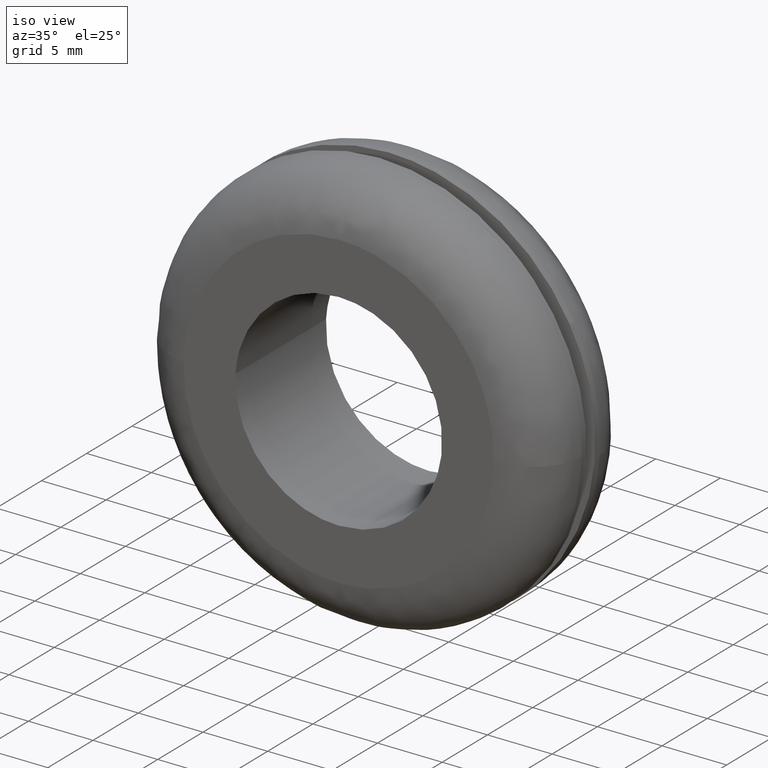
[diagram: clean part render]
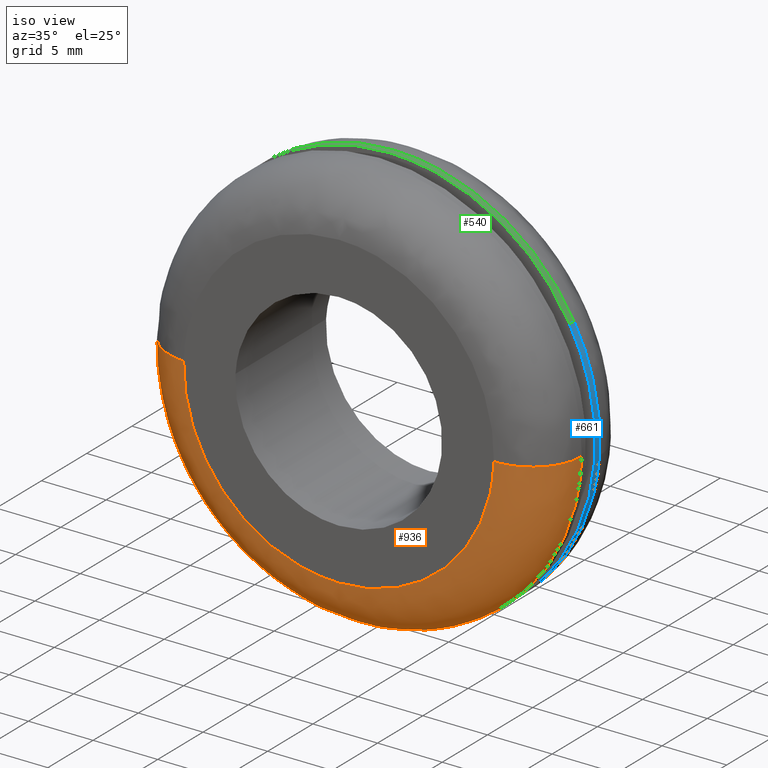
[diagram: same view with three faces highlighted in distinct colors, each labeled with its STEP entity id]
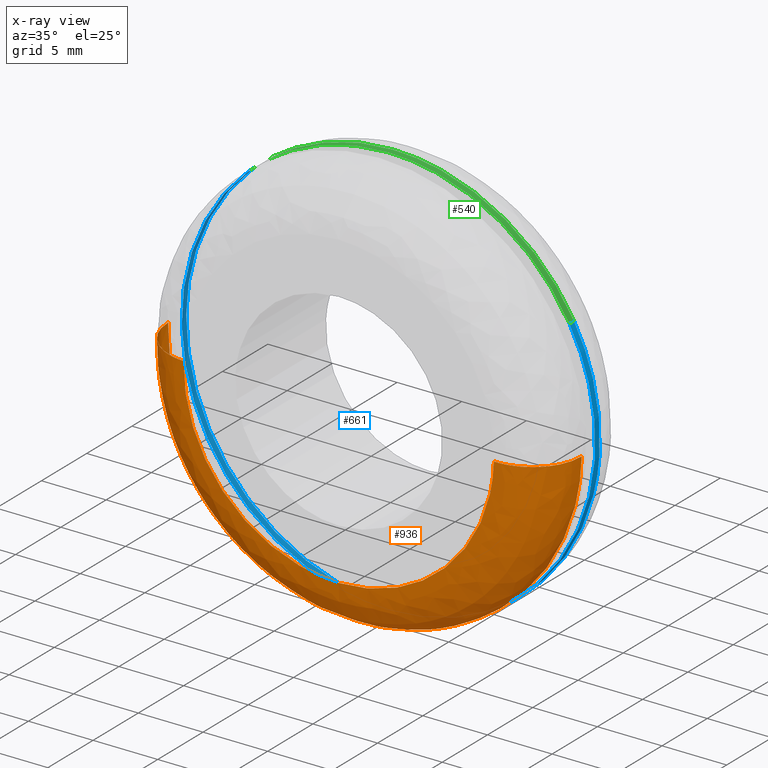
[diagram: x-ray of the same camera — body ghosted, the three highlighted faces saturated]
A machine part, iso view with three faces highlighted in distinct colors.
The next image is the same camera in x-ray (body ghosted, the three faces saturated) — at least one of them is partly hidden behind the body in this view.
Their STEP definitions:

[orange] entity #936 — the highlighted face is a freeform B-spline surface patch.
#137=CARTESIAN_POINT('',(15.994947028532691,3.999999999971177,-0.402081527097603));
#138=VERTEX_POINT('',#137);
#154=CARTESIAN_POINT('',(0.0,4.0,-16.0));
#155=VERTEX_POINT('',#154);
#156=CARTESIAN_POINT('',(0.0,4.0,-16.0));
#157=CARTESIAN_POINT('',(15.602846018882175,4.0,-16.0));
#158=CARTESIAN_POINT('',(15.994947028532689,3.999999999971177,-0.402081527097603));
#166=(BOUNDED_CURVE()B_SPLINE_CURVE(2,(#156,#157,#158),.UNSPECIFIED.,.F.,.U.)B_SPLINE_CURVE_WITH_KNOTS((3,3),(0.0,0.245579891769716),.UNSPECIFIED.)CURVE()GEOMETRIC_REPRESENTATION_ITEM()RATIONAL_B_SPLINE_CURVE((1.0,0.712285260094835,0.989826157681368))REPRESENTATION_ITEM(''));
#167=EDGE_CURVE('',#155,#138,#166,.T.);
#169=CARTESIAN_POINT('',(-10.469433989899141,4.0,-12.099212864114101));
#170=VERTEX_POINT('',#169);
#171=CARTESIAN_POINT('',(-10.469433989899136,4.000000000000000,-12.099212864114101));
#172=CARTESIAN_POINT('',(-5.961410150552005,4.000000000000001,-16.0));
#173=CARTESIAN_POINT('',(0.0,4.0,-16.0));
#181=(BOUNDED_CURVE()B_SPLINE_CURVE(2,(#171,#172,#173),.UNSPECIFIED.,.F.,.U.)B_SPLINE_CURVE_WITH_KNOTS((3,3),(0.885882132988790,1.0),.UNSPECIFIED.)CURVE()GEOMETRIC_REPRESENTATION_ITEM()RATIONAL_B_SPLINE_CURVE((0.854663299542762,0.866302602427844,1.0))REPRESENTATION_ITEM(''));
#182=EDGE_CURVE('',#170,#155,#181,.T.);
#226=CARTESIAN_POINT('',(-15.994947028532691,3.999999999971177,0.402081527097606));
#227=VERTEX_POINT('',#226);
#228=CARTESIAN_POINT('',(-15.994947028532691,3.999999999971177,0.402081527097606));
#229=CARTESIAN_POINT('',(-15.999999999999998,4.000000000000001,0.201072513978281));
#230=CARTESIAN_POINT('',(-16.0,4.0,-3.061516E-016));
#231=CARTESIAN_POINT('',(-15.999999999999998,4.000000000000001,-7.313621324408961));
#232=CARTESIAN_POINT('',(-10.469433989899137,4.000000000000000,-12.099212864114097));
#240=(BOUNDED_CURVE()B_SPLINE_CURVE(2,(#228,#229,#230,#231,#232),.UNSPECIFIED.,.F.,.U.)B_SPLINE_CURVE_WITH_KNOTS((3,2,3),(0.745579891769716,0.750000000000000,0.885882132988790),.UNSPECIFIED.)CURVE()GEOMETRIC_REPRESENTATION_ITEM()RATIONAL_B_SPLINE_CURVE((0.989826157681368,0.994821521091713,1.0,0.840804178758703,0.854663299542762))REPRESENTATION_ITEM(''));
#241=EDGE_CURVE('',#227,#170,#240,.T.);
#848=CARTESIAN_POINT('',(-15.985215332948144,4.278896743776159,0.401836891395958));
#849=CARTESIAN_POINT('',(-16.387052224344121,4.278896743776159,-15.583378441552181));
#850=CARTESIAN_POINT('',(-0.401836891395962,4.278896743776159,-15.985215332948144));
#851=CARTESIAN_POINT('',(15.583378441552181,4.278896743776159,-16.387052224344121));
#852=CARTESIAN_POINT('',(15.985215332948144,4.278896743776159,-0.401836891395963));
#853=CARTESIAN_POINT('',(-16.305805791579093,-0.309342862298938,0.409895905342547));
#854=CARTESIAN_POINT('',(-16.715701696921641,-0.309342862298938,-15.895909886236542));
#855=CARTESIAN_POINT('',(-0.409895905342552,-0.309342862298938,-16.305805791579093));
#856=CARTESIAN_POINT('',(15.895909886236542,-0.309342862298938,-16.715701696921649));
#857=CARTESIAN_POINT('',(16.305805791579093,-0.309342862298938,-0.409895905342553));
#858=CARTESIAN_POINT('',(-11.718895464735361,0.009630605935752,0.294589996197127));
#859=CARTESIAN_POINT('',(-12.013485460932497,0.009630605935752,-11.424305468538236));
#860=CARTESIAN_POINT('',(-0.294589996197130,0.009630605935752,-11.718895464735361));
#861=CARTESIAN_POINT('',(11.424305468538236,0.009630605935752,-12.013485460932497));
#862=CARTESIAN_POINT('',(11.718895464735361,0.009630605935752,-0.294589996197131));
#870=(BOUNDED_SURFACE()B_SPLINE_SURFACE(2,2,((#848,#853,#858),(#849,#854,#859),(#850,#855,#860),(#851,#856,#861),(#852,#857,#862)),.UNSPECIFIED.,.F.,.F.,.U.)B_SPLINE_SURFACE_WITH_KNOTS((3,2,3),(3,3),(0.0,26.493538896952860,52.987077793905719),(0.0,7.289481449129502),.UNSPECIFIED.)GEOMETRIC_REPRESENTATION_ITEM()RATIONAL_B_SPLINE_SURFACE(((0.910892941964346,0.599412927742117,0.915966633662292),(0.644098576197953,0.423848945937333,0.647686218003221),(0.910892941964346,0.599412927742117,0.915966633662292),(0.644098576197953,0.423848945937333,0.647686218003221),(0.910892941964346,0.599412927742117,0.915966633662292)))REPRESENTATION_ITEM('')SURFACE());
#871=ORIENTED_EDGE('',*,*,#241,.T.);
#872=ORIENTED_EDGE('',*,*,#182,.T.);
#873=ORIENTED_EDGE('',*,*,#167,.T.);
#874=CARTESIAN_POINT('',(11.996210271578480,-4.229799E-016,-0.301561145346711));
#875=VERTEX_POINT('',#874);
#876=CARTESIAN_POINT('',(15.994947028532696,3.999999999971176,-0.402081527097603));
#877=CARTESIAN_POINT('',(15.994947028475169,3.589996E-010,-0.402081527091949));
#878=CARTESIAN_POINT('',(11.996210271578482,-4.229799E-016,-0.301561145346710));
#886=(BOUNDED_CURVE()B_SPLINE_CURVE(2,(#876,#877,#878),.UNSPECIFIED.,.F.,.U.)B_SPLINE_CURVE_WITH_KNOTS((3,3),(-1.723441281969931,-0.263586879020717),.UNSPECIFIED.)CURVE()GEOMETRIC_REPRESENTATION_ITEM()RATIONAL_B_SPLINE_CURVE((0.883897567133435,0.626638727256570,0.888510409029225))REPRESENTATION_ITEM(''));
#887=EDGE_CURVE('',#138,#875,#886,.T.);
#888=ORIENTED_EDGE('',*,*,#887,.T.);
#889=CARTESIAN_POINT('',(0.0,-2.220446E-015,-12.0));
#890=VERTEX_POINT('',#889);
#891=CARTESIAN_POINT('',(0.0,-2.220446E-015,-12.0));
#892=CARTESIAN_POINT('',(11.702134514124568,-2.220446E-015,-11.999999999999998));
#893=CARTESIAN_POINT('',(11.996210271578484,-4.229799E-016,-0.301561145346710));
#901=(BOUNDED_CURVE()B_SPLINE_CURVE(2,(#891,#892,#893),.UNSPECIFIED.,.F.,.U.)B_SPLINE_CURVE_WITH_KNOTS((3,3),(0.0,0.245579891769162),.UNSPECIFIED.)CURVE()GEOMETRIC_REPRESENTATION_ITEM()RATIONAL_B_SPLINE_CURVE((1.0,0.712285260095484,0.989826157680116))REPRESENTATION_ITEM(''));
#902=EDGE_CURVE('',#890,#875,#901,.T.);
#903=ORIENTED_EDGE('',*,*,#902,.F.);
#904=CARTESIAN_POINT('',(-11.996210271578480,-3.605033E-016,0.301561145346710));
#905=VERTEX_POINT('',#904);
#906=CARTESIAN_POINT('',(-11.996210271578486,-3.605033E-016,0.301561145346710));
#907=CARTESIAN_POINT('',(-11.999999999999998,-2.220446E-015,0.150804385502714));
#908=CARTESIAN_POINT('',(-12.0,-2.220446E-015,-3.061516E-016));
#909=CARTESIAN_POINT('',(-12.0,-2.220446E-015,-12.0));
#910=CARTESIAN_POINT('',(0.0,-2.220446E-015,-12.0));
#918=(BOUNDED_CURVE()B_SPLINE_CURVE(2,(#906,#907,#908,#909,#910),.UNSPECIFIED.,.F.,.U.)B_SPLINE_CURVE_WITH_KNOTS((3,2,3),(0.745579891769161,0.750000000000000,1.0),.UNSPECIFIED.)CURVE()GEOMETRIC_REPRESENTATION_ITEM()RATIONAL_B_SPLINE_CURVE((0.989826157680116,0.994821521091063,1.0,0.707106781186548,1.0))REPRESENTATION_ITEM(''));
#919=EDGE_CURVE('',#905,#890,#918,.T.);
#920=ORIENTED_EDGE('',*,*,#919,.F.);
#921=CARTESIAN_POINT('',(-15.994947028532696,3.999999999971176,0.402081527097606));
#922=CARTESIAN_POINT('',(-15.994947028475169,3.589996E-010,0.402081527091952));
#923=CARTESIAN_POINT('',(-11.996210271578482,-3.605033E-016,0.301561145346710));
#931=(BOUNDED_CURVE()B_SPLINE_CURVE(2,(#921,#922,#923),.UNSPECIFIED.,.F.,.U.)B_SPLINE_CURVE_WITH_KNOTS((3,3),(-1.723441281969931,-0.263586879020717),.UNSPECIFIED.)CURVE()GEOMETRIC_REPRESENTATION_ITEM()RATIONAL_B_SPLINE_CURVE((0.883897567133435,0.626638727256570,0.888510409029225))REPRESENTATION_ITEM(''));
#932=EDGE_CURVE('',#227,#905,#931,.T.);
#933=ORIENTED_EDGE('',*,*,#932,.F.);
#934=EDGE_LOOP('',(#871,#872,#873,#888,#903,#920,#933));
#935=FACE_OUTER_BOUND('',#934,.T.);
#936=ADVANCED_FACE('',(#935),#870,.T.);

[blue] entity #661 — the highlighted face is a freeform B-spline surface patch.
#464=CARTESIAN_POINT('',(13.999144271823431,6.000000000000282,7.747513127234091));
#465=VERTEX_POINT('',#464);
#481=CARTESIAN_POINT('',(-10.809442670793439,6.000000000009967,11.796437985544690));
#482=VERTEX_POINT('',#481);
#496=CARTESIAN_POINT('',(-10.809442688117811,5.500000000000000,11.796437969671000));
#497=VERTEX_POINT('',#496);
#498=CARTESIAN_POINT('',(-10.809442670793439,6.000000000009967,11.796437985544690));
#499=CARTESIAN_POINT('',(-10.809442688117811,5.500000000000000,11.796437969671000));
#500=QUASI_UNIFORM_CURVE('',1,(#498,#499),.UNSPECIFIED.,.F.,.U.);
#501=EDGE_CURVE('',#482,#497,#500,.T.);
#518=CARTESIAN_POINT('',(13.999144158928511,5.500000000000000,7.747513331226376));
#519=VERTEX_POINT('',#518);
#533=CARTESIAN_POINT('',(13.999144271823431,6.000000000000282,7.747513127234091));
#534=CARTESIAN_POINT('',(13.999144158928511,5.500000000000000,7.747513331226376));
#535=QUASI_UNIFORM_CURVE('',1,(#533,#534),.UNSPECIFIED.,.F.,.U.);
#536=EDGE_CURVE('',#465,#519,#535,.T.);
#541=CARTESIAN_POINT('',(-10.809443321850560,6.012500000038799,11.796437388961980));
#542=CARTESIAN_POINT('',(-22.605880710812539,6.012500000038799,0.986994067111418));
#543=CARTESIAN_POINT('',(-11.796437388961980,6.012500000038799,-10.809443321850560));
#544=CARTESIAN_POINT('',(-0.986994067111418,6.012500000038799,-22.605880710812539));
#545=CARTESIAN_POINT('',(10.809443321850560,6.012500000038799,-11.796437388961980));
#546=CARTESIAN_POINT('',(20.102557312332717,6.012500000038799,-3.280867335785717));
#547=CARTESIAN_POINT('',(13.999142839090082,6.012500000038799,7.747515716070069));
#548=CARTESIAN_POINT('',(-10.809443321850560,5.487187499999029,11.796437388961980));
#549=CARTESIAN_POINT('',(-22.605880710812539,5.487187499999030,0.986994067111418));
#550=CARTESIAN_POINT('',(-11.796437388961980,5.487187499999029,-10.809443321850560));
#551=CARTESIAN_POINT('',(-0.986994067111418,5.487187499999030,-22.605880710812539));
#552=CARTESIAN_POINT('',(10.809443321850560,5.487187499999029,-11.796437388961980));
#553=CARTESIAN_POINT('',(20.102557312332717,5.487187499999030,-3.280867335785717));
#554=CARTESIAN_POINT('',(13.999142839090082,5.487187499999030,7.747515716070069));
#562=(BOUNDED_SURFACE()B_SPLINE_SURFACE(2,1,((#541,#548),(#542,#549),(#543,#550),(#544,#551),(#545,#552),(#546,#553),(#547,#554)),.UNSPECIFIED.,.F.,.F.,.U.)B_SPLINE_SURFACE_WITH_KNOTS((3,2,2,3),(2,2),(0.0,26.509667991878079,53.019335983756150,75.287457096933736),(0.0,1.0),.UNSPECIFIED.)GEOMETRIC_REPRESENTATION_ITEM()RATIONAL_B_SPLINE_SURFACE(((1.0,1.0),(0.707106781186548,0.707106781186548),(1.0,1.0),(0.707106781186548,0.707106781186548),(1.0,1.0),(0.753969696196700,0.753969696196700),(0.921270302782944,0.921270302782944)))REPRESENTATION_ITEM('')SURFACE());
#563=CARTESIAN_POINT('',(15.961050781446730,6.000000000037852,-1.115732025209768));
#564=VERTEX_POINT('',#563);
#565=CARTESIAN_POINT('',(15.961050781446728,6.000000000037852,-1.115732025209769));
#566=CARTESIAN_POINT('',(15.999999999999996,6.0,-0.558545853998097));
#567=CARTESIAN_POINT('',(16.0,6.0,-3.061516E-016));
#568=CARTESIAN_POINT('',(16.000000000000004,5.999999999999999,4.132124867047483));
#569=CARTESIAN_POINT('',(13.999144271823427,6.000000000000281,7.747513127234091));
#577=(BOUNDED_CURVE()B_SPLINE_CURVE(2,(#565,#566,#567,#568,#569),.UNSPECIFIED.,.F.,.U.)B_SPLINE_CURVE_WITH_KNOTS((3,2,3),(0.237833686535076,0.250000000000000,0.332484260513294),.UNSPECIFIED.)CURVE()GEOMETRIC_REPRESENTATION_ITEM()RATIONAL_B_SPLINE_CURVE((0.972879876386944,0.985746277152660,1.0,0.903363677747256,0.870495160132448))REPRESENTATION_ITEM(''));
#578=EDGE_CURVE('',#564,#465,#577,.T.);
#579=ORIENTED_EDGE('',*,*,#578,.T.);
#580=ORIENTED_EDGE('',*,*,#536,.T.);
#581=CARTESIAN_POINT('',(0.0,5.500000000000000,-16.0));
#582=VERTEX_POINT('',#581);
#583=CARTESIAN_POINT('',(0.0,5.500000000000000,-16.0));
#584=CARTESIAN_POINT('',(15.999999999999998,5.500000000000001,-15.999999999999998));
#585=CARTESIAN_POINT('',(16.0,5.500000000000000,-3.061516E-016));
#586=CARTESIAN_POINT('',(16.000000000000007,5.499999999999999,4.132124991396774));
#587=CARTESIAN_POINT('',(13.999144158928505,5.500000000000000,7.747513331226376));
#595=(BOUNDED_CURVE()B_SPLINE_CURVE(2,(#583,#584,#585,#586,#587),.UNSPECIFIED.,.F.,.U.)B_SPLINE_CURVE_WITH_KNOTS((3,2,3),(0.0,0.250000000000000,0.332484262755645),.UNSPECIFIED.)CURVE()GEOMETRIC_REPRESENTATION_ITEM()RATIONAL_B_SPLINE_CURVE((1.0,0.707106781186548,1.0,0.903363675120178,0.870495158345374))REPRESENTATION_ITEM(''));
#596=EDGE_CURVE('',#582,#519,#595,.T.);
#597=ORIENTED_EDGE('',*,*,#596,.F.);
#598=CARTESIAN_POINT('',(-10.809442688117809,5.500000000000000,11.796437969671002));
#599=CARTESIAN_POINT('',(-16.0,5.499999999999999,7.040169520245899));
#600=CARTESIAN_POINT('',(-16.0,5.500000000000000,-3.061516E-016));
#601=CARTESIAN_POINT('',(-15.999999999999998,5.500000000000001,-15.999999999999998));
#602=CARTESIAN_POINT('',(0.0,5.500000000000000,-16.0));
#610=(BOUNDED_CURVE()B_SPLINE_CURVE(2,(#598,#599,#600,#601,#602),.UNSPECIFIED.,.F.,.U.)B_SPLINE_CURVE_WITH_KNOTS((3,2,3),(0.618415192864190,0.750000000000000,1.0),.UNSPECIFIED.)CURVE()GEOMETRIC_REPRESENTATION_ITEM()RATIONAL_B_SPLINE_CURVE((0.853959782840026,0.845838809164181,1.0,0.707106781186548,1.0))REPRESENTATION_ITEM(''));
#611=EDGE_CURVE('',#497,#582,#610,.T.);
#612=ORIENTED_EDGE('',*,*,#611,.F.);
#613=ORIENTED_EDGE('',*,*,#501,.F.);
#614=CARTESIAN_POINT('',(-15.998736707260949,6.000000000037799,0.201056638142445));
#615=VERTEX_POINT('',#614);
#616=CARTESIAN_POINT('',(-10.809442670793437,6.000000000009967,11.796437985544687));
#617=CARTESIAN_POINT('',(-15.911773376574466,6.000000000021244,7.121014335795461));
#618=CARTESIAN_POINT('',(-15.998736707260944,6.000000000037799,0.201056638142445));
#626=(BOUNDED_CURVE()B_SPLINE_CURVE(2,(#616,#617,#618),.UNSPECIFIED.,.F.,.U.)B_SPLINE_CURVE_WITH_KNOTS((3,3),(0.618415192420786,0.747784295921534),.UNSPECIFIED.)CURVE()GEOMETRIC_REPRESENTATION_ITEM()RATIONAL_B_SPLINE_CURVE((0.853959782894757,0.845975554490198,0.994854295643565))REPRESENTATION_ITEM(''));
#627=EDGE_CURVE('',#482,#615,#626,.T.);
#628=ORIENTED_EDGE('',*,*,#627,.T.);
#629=CARTESIAN_POINT('',(0.0,6.0,-16.0));
#630=VERTEX_POINT('',#629);
#631=CARTESIAN_POINT('',(-15.998736707260944,6.000000000037799,0.201056638142445));
#632=CARTESIAN_POINT('',(-16.000000000000004,6.000000000000001,0.100532287879047));
#633=CARTESIAN_POINT('',(-16.0,6.0,-3.061516E-016));
#634=CARTESIAN_POINT('',(-15.999999999999998,6.0,-15.999999999999998));
#635=CARTESIAN_POINT('',(0.0,6.0,-16.0));
#643=(BOUNDED_CURVE()B_SPLINE_CURVE(2,(#631,#632,#633,#634,#635),.UNSPECIFIED.,.F.,.U.)B_SPLINE_CURVE_WITH_KNOTS((3,2,3),(0.747784295921535,0.750000000000000,1.0),.UNSPECIFIED.)CURVE()GEOMETRIC_REPRESENTATION_ITEM()RATIONAL_B_SPLINE_CURVE((0.994854295643567,0.997404141202081,1.0,0.707106781186548,1.0))REPRESENTATION_ITEM(''));
#644=EDGE_CURVE('',#615,#630,#643,.T.);
#645=ORIENTED_EDGE('',*,*,#644,.T.);
#646=CARTESIAN_POINT('',(0.0,6.0,-16.0));
#647=CARTESIAN_POINT('',(14.920589556260845,6.000000000000003,-16.000000000000004));
#648=CARTESIAN_POINT('',(15.961050781446732,6.000000000037852,-1.115732025209769));
#656=(BOUNDED_CURVE()B_SPLINE_CURVE(2,(#646,#647,#648),.UNSPECIFIED.,.F.,.U.)B_SPLINE_CURVE_WITH_KNOTS((3,3),(0.0,0.237833686535076),.UNSPECIFIED.)CURVE()GEOMETRIC_REPRESENTATION_ITEM()RATIONAL_B_SPLINE_CURVE((1.0,0.721360504033887,0.972879876386943))REPRESENTATION_ITEM(''));
#657=EDGE_CURVE('',#630,#564,#656,.T.);
#658=ORIENTED_EDGE('',*,*,#657,.T.);
#659=EDGE_LOOP('',(#579,#580,#597,#612,#613,#628,#645,#658));
#660=FACE_OUTER_BOUND('',#659,.T.);
#661=ADVANCED_FACE('',(#660),#562,.T.);

[green] entity #540 — the highlighted face is a freeform B-spline surface patch.
#446=CARTESIAN_POINT('',(13.999142839090082,6.012500000038799,7.747515716070069));
#447=CARTESIAN_POINT('',(13.079515056441656,6.012500000038799,9.409209755797862));
#448=CARTESIAN_POINT('',(11.796437388961980,6.012500000038799,10.809443321850560));
#449=CARTESIAN_POINT('',(0.986994067111418,6.012500000038799,22.605880710812539));
#450=CARTESIAN_POINT('',(-10.809443321850560,6.012500000038799,11.796437388961980));
#451=CARTESIAN_POINT('',(13.999142839090082,5.487187499999030,7.747515716070069));
#452=CARTESIAN_POINT('',(13.079515056441656,5.487187499999031,9.409209755797862));
#453=CARTESIAN_POINT('',(11.796437388961980,5.487187499999029,10.809443321850560));
#454=CARTESIAN_POINT('',(0.986994067111418,5.487187499999030,22.605880710812539));
#455=CARTESIAN_POINT('',(-10.809443321850560,5.487187499999029,11.796437388961980));
#463=(BOUNDED_SURFACE()B_SPLINE_SURFACE(2,1,((#446,#451),(#447,#452),(#448,#453),(#449,#454),(#450,#455)),.UNSPECIFIED.,.F.,.F.,.U.)B_SPLINE_SURFACE_WITH_KNOTS((3,2,3),(2,2),(0.0,4.241546878700499,30.751214870578579),(0.0,1.0),.UNSPECIFIED.)GEOMETRIC_REPRESENTATION_ITEM()RATIONAL_B_SPLINE_SURFACE(((0.921270302782944,0.921270302782944),(0.953137084989848,0.953137084989848),(1.0,1.0),(0.707106781186548,0.707106781186548),(1.0,1.0)))REPRESENTATION_ITEM('')SURFACE());
#464=CARTESIAN_POINT('',(13.999144271823431,6.000000000000282,7.747513127234091));
#465=VERTEX_POINT('',#464);
#466=CARTESIAN_POINT('',(0.0,6.0,16.0));
#467=VERTEX_POINT('',#466);
#468=CARTESIAN_POINT('',(13.999144271823427,6.000000000000281,7.747513127234091));
#469=CARTESIAN_POINT('',(9.431990084566193,6.000000000000001,16.000000000000007));
#470=CARTESIAN_POINT('',(0.0,6.0,16.0));
#478=(BOUNDED_CURVE()B_SPLINE_CURVE(2,(#468,#469,#470),.UNSPECIFIED.,.F.,.U.)B_SPLINE_CURVE_WITH_KNOTS((3,3),(0.332484260513294,0.500000000000000),.UNSPECIFIED.)CURVE()GEOMETRIC_REPRESENTATION_ITEM()RATIONAL_B_SPLINE_CURVE((0.870495160132448,0.803743103439292,1.0))REPRESENTATION_ITEM(''));
#479=EDGE_CURVE('',#465,#467,#478,.T.);
#480=ORIENTED_EDGE('',*,*,#479,.T.);
#481=CARTESIAN_POINT('',(-10.809442670793439,6.000000000009967,11.796437985544690));
#482=VERTEX_POINT('',#481);
#483=CARTESIAN_POINT('',(0.0,6.0,16.0));
#484=CARTESIAN_POINT('',(-6.222058693050388,6.0,16.000000000000007));
#485=CARTESIAN_POINT('',(-10.809442670793439,6.000000000009967,11.796437985544689));
#493=(BOUNDED_CURVE()B_SPLINE_CURVE(2,(#483,#484,#485),.UNSPECIFIED.,.F.,.U.)B_SPLINE_CURVE_WITH_KNOTS((3,3),(0.500000000000000,0.618415192420787),.UNSPECIFIED.)CURVE()GEOMETRIC_REPRESENTATION_ITEM()RATIONAL_B_SPLINE_CURVE((1.0,0.861267972541846,0.853959782894757))REPRESENTATION_ITEM(''));
#494=EDGE_CURVE('',#467,#482,#493,.T.);
#495=ORIENTED_EDGE('',*,*,#494,.T.);
#496=CARTESIAN_POINT('',(-10.809442688117811,5.500000000000000,11.796437969671000));
#497=VERTEX_POINT('',#496);
#498=CARTESIAN_POINT('',(-10.809442670793439,6.000000000009967,11.796437985544690));
#499=CARTESIAN_POINT('',(-10.809442688117811,5.500000000000000,11.796437969671000));
#500=QUASI_UNIFORM_CURVE('',1,(#498,#499),.UNSPECIFIED.,.F.,.U.);
#501=EDGE_CURVE('',#482,#497,#500,.T.);
#502=ORIENTED_EDGE('',*,*,#501,.T.);
#503=CARTESIAN_POINT('',(0.0,5.500000000000000,16.0));
#504=VERTEX_POINT('',#503);
#505=CARTESIAN_POINT('',(0.0,5.500000000000000,16.0));
#506=CARTESIAN_POINT('',(-6.222058720101623,5.500000000000000,16.0));
#507=CARTESIAN_POINT('',(-10.809442688117809,5.500000000000000,11.796437969671002));
#515=(BOUNDED_CURVE()B_SPLINE_CURVE(2,(#505,#506,#507),.UNSPECIFIED.,.F.,.U.)B_SPLINE_CURVE_WITH_KNOTS((3,3),(0.500000000000000,0.618415192864190),.UNSPECIFIED.)CURVE()GEOMETRIC_REPRESENTATION_ITEM()RATIONAL_B_SPLINE_CURVE((1.0,0.861267972022367,0.853959782840026))REPRESENTATION_ITEM(''));
#516=EDGE_CURVE('',#504,#497,#515,.T.);
#517=ORIENTED_EDGE('',*,*,#516,.F.);
#518=CARTESIAN_POINT('',(13.999144158928511,5.500000000000000,7.747513331226376));
#519=VERTEX_POINT('',#518);
#520=CARTESIAN_POINT('',(13.999144158928505,5.500000000000000,7.747513331226376));
#521=CARTESIAN_POINT('',(9.431989927481434,5.500000000000000,16.000000000000004));
#522=CARTESIAN_POINT('',(0.0,5.500000000000000,16.0));
#530=(BOUNDED_CURVE()B_SPLINE_CURVE(2,(#520,#521,#522),.UNSPECIFIED.,.F.,.U.)B_SPLINE_CURVE_WITH_KNOTS((3,3),(0.332484262755645,0.500000000000000),.UNSPECIFIED.)CURVE()GEOMETRIC_REPRESENTATION_ITEM()RATIONAL_B_SPLINE_CURVE((0.870495158345374,0.803743106066369,1.0))REPRESENTATION_ITEM(''));
#531=EDGE_CURVE('',#519,#504,#530,.T.);
#532=ORIENTED_EDGE('',*,*,#531,.F.);
#533=CARTESIAN_POINT('',(13.999144271823431,6.000000000000282,7.747513127234091));
#534=CARTESIAN_POINT('',(13.999144158928511,5.500000000000000,7.747513331226376));
#535=QUASI_UNIFORM_CURVE('',1,(#533,#534),.UNSPECIFIED.,.F.,.U.);
#536=EDGE_CURVE('',#465,#519,#535,.T.);
#537=ORIENTED_EDGE('',*,*,#536,.F.);
#538=EDGE_LOOP('',(#480,#495,#502,#517,#532,#537));
#539=FACE_OUTER_BOUND('',#538,.T.);
#540=ADVANCED_FACE('',(#539),#463,.T.);